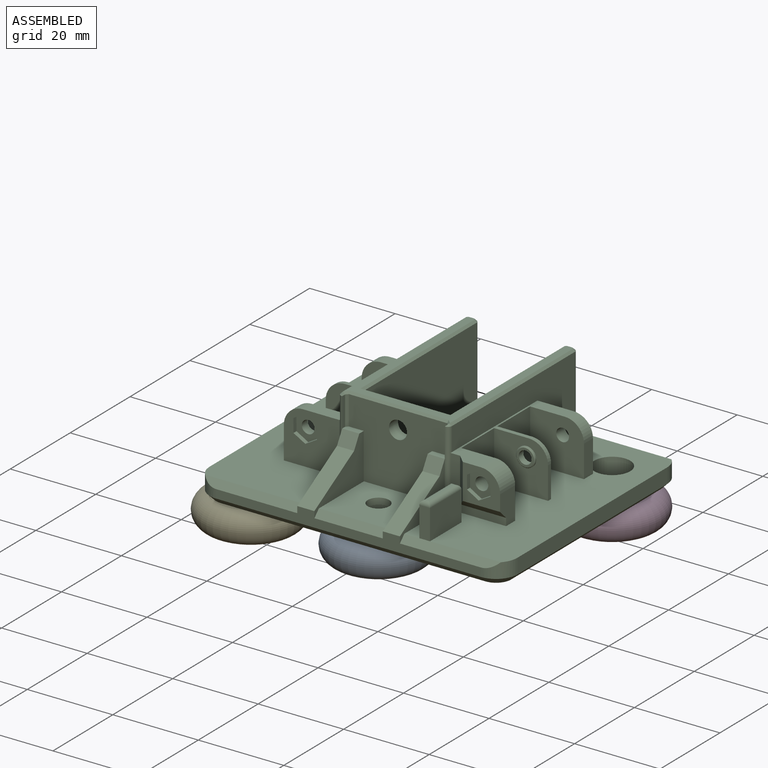
[diagram: assembled view]
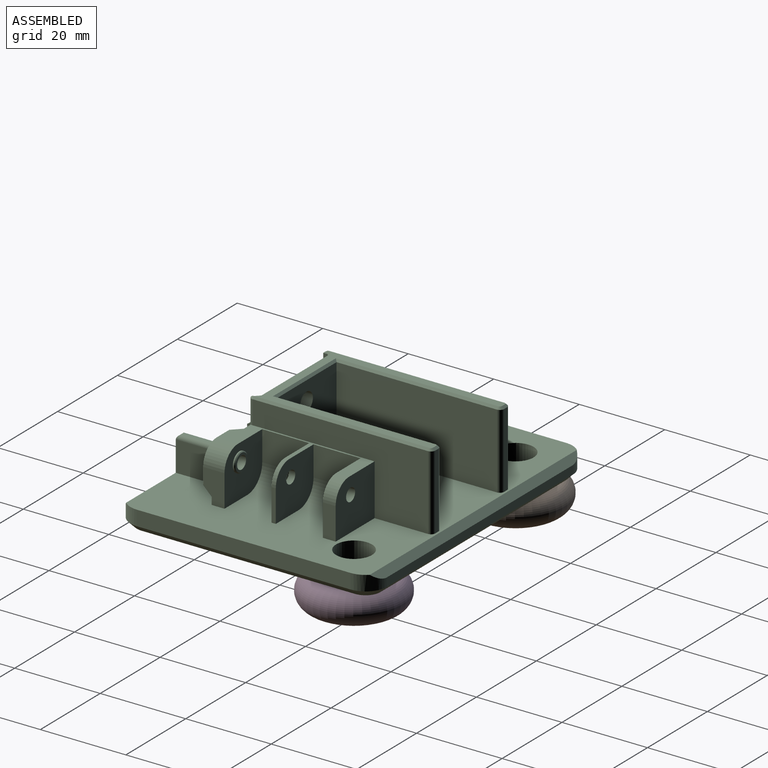
[diagram: assembled view, second angle]
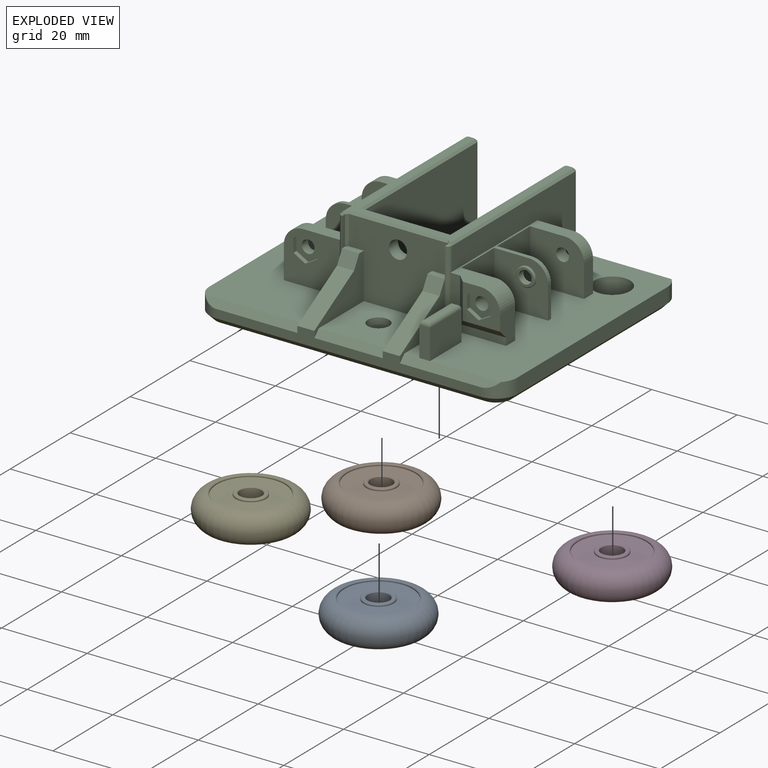
[diagram: exploded view]
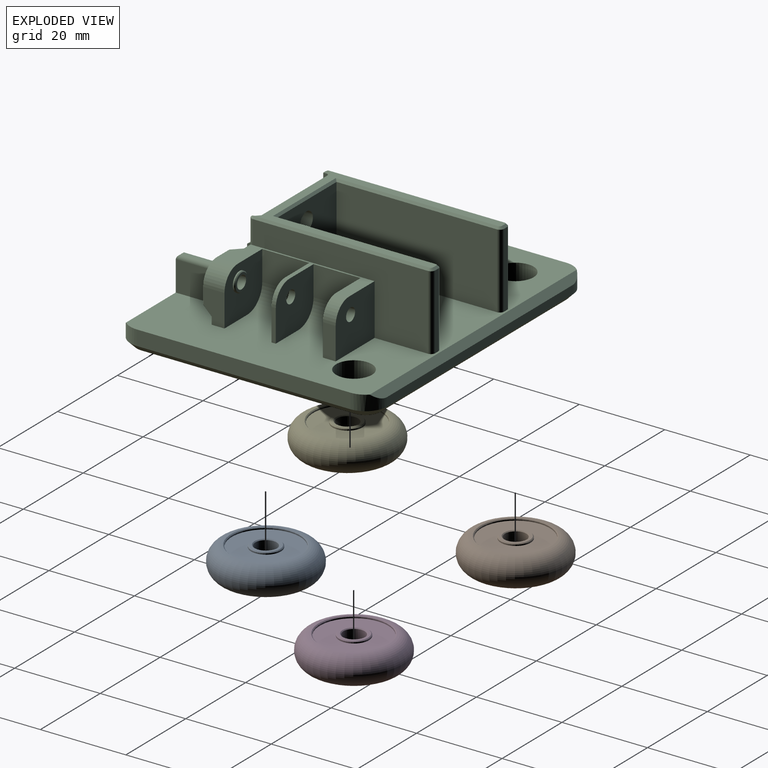
[diagram: exploded view, second angle]
ASSEMBLY  parts=5 mates=3
PART A: 16 faces, bbox 24.9x24.9x7 mm
  f0: plane 6.6x6.6mm, normal (0,0,-1), area 11.3mm2, adj f11,f12
  f1: cylinder r=2.5mm len=6.6mm, axis (0,0,-1), area 103.7mm2, adj f10,f11
  f2: plane 6.6x6.6mm, normal (0,0,1), area 11.3mm2, adj f10,f15
  f3: cylinder r=3.5mm len=7mm, axis (0,0,-1), area 6.6mm2, adj f5,f15
  f4: cylinder r=8mm len=16mm, axis (0,0,-1), area 14.8mm2, adj f5,f14
  f5: plane 16x16mm, normal (0,0,1), area 162.6mm2, adj f3,f4
  f6: cylinder r=3.5mm len=7mm, axis (0,0,-1), area 6.6mm2, adj f8,f12
  f7: cylinder r=8mm len=16mm, axis (0,0,-1), area 14.8mm2, adj f8,f13
  f8: plane 16x16mm, normal (0,0,-1), area 162.6mm2, adj f6,f7
  f9: torus R=8mm, axis (0,0,1), area 685mm2, adj f13,f14
  f10: cone r=2.5mm half-angle=45deg, axis (0,0,1), area 4.6mm2, adj f1,f2
  f11: cone r=2.7mm half-angle=45deg, axis (0,0,-1), area 4.6mm2, adj f0,f1
  f12: cone r=3.5mm half-angle=45deg, axis (0,0,1), area 6mm2, adj f0,f6
  f13: cone r=8mm half-angle=46.7deg, axis (0,0,-1), area 14.8mm2, adj f7,f9
  f14: cone r=8.21mm half-angle=46.7deg, axis (0,0,1), area 14.8mm2, adj f4,f9
  f15: cone r=3.5mm half-angle=45deg, axis (0,0,-1), area 6mm2, adj f2,f3
PART B: same geometry as A
PART C: 162 faces, bbox 72x60x23 mm
  f0: plane 13x12mm, normal (0,-1,0), area 45.8mm2, adj f8,f83,f93,f94,f158,f159
  f1: cylinder r=1.5mm len=3mm, axis (0,1,0), area 14.1mm2, adj f88,f105
  f2: cylinder r=1.5mm len=3mm, axis (0,1,0), area 28.3mm2, adj f84,f86
  f3: cylinder r=1.5mm len=3mm, axis (0,1,0), area 18.8mm2, adj f63,f76
  f4: cylinder r=1.5mm len=3mm, axis (0,1,0), area 14.1mm2, adj f61,f80
  f5: cylinder r=4.2mm len=8.4mm, axis (0,0,1), area 92.4mm2, adj f24,f151
  f6: plane 8.5x0.5mm, normal (0,0,1), area 4.2mm2, adj f146,f147,f148,f149
  f7: plane 41.5x25mm, normal (0,0,1), area 204.8mm2, adj f123,f125,f127,f130,f132,f133,f134,f135
  f8: plane 72x57mm, normal (0,0,1), area 2870.4mm2, adj f0,f9,f10,f11,f12,f14,f16,f17
  f9: plane 37.5x17.5mm, normal (-1,0,0), area 656.3mm2, adj f8,f29,f116,f141
  f10: plane 37.5x17.5mm, normal (1,0,0), area 656.3mm2, adj f8,f30,f116,f138
  f11: plane 41x17.5mm, normal (1,0,0), area 375.5mm2, adj f8,f26,f27,f84,f94,f133
  f12: plane 41x17.5mm, normal (-1,0,0), area 375.5mm2, adj f8,f25,f32,f55,f65,f130
  f13: plane 16x15mm, normal (0,0,1), area 220.4mm2, adj f34,f36,f49,f121,f150
  f14: cylinder r=5mm len=5mm, axis (0,0,1), area 23.6mm2, adj f8,f15,f23,f42,f52
  f15: plane 62x3.5mm, normal (0,-1,0), area 136mm2, adj f14,f16,f33,f34,f35,f36,f37,f38
  f16: cylinder r=5mm len=5mm, axis (0,0,1), area 23.6mm2, adj f8,f15,f17,f43,f50
  f17: plane 50x3.5mm, normal (1,0,0), area 175mm2, adj f8,f16,f18,f45
  f18: cylinder r=5mm len=5mm, axis (0,0,1), area 23.6mm2, adj f8,f17,f19,f47,f51
  f19: plane 62x2mm, normal (0,1,0), area 124mm2, adj f18,f20,f48,f51
  f20: cylinder r=5mm len=5mm, axis (0,0,1), area 23.6mm2, adj f8,f19,f23,f46,f51
  f21: cylinder r=4.2mm len=8.4mm, axis (0,0,1), area 131.9mm2, adj f8,f24
  f22: cylinder r=4.2mm len=8.4mm, axis (0,0,1), area 131.9mm2, adj f8,f24
  f23: plane 50x3.5mm, normal (-1,0,0), area 175mm2, adj f8,f14,f20,f44
  f24: plane 69x57mm, normal (0,0,-1), area 3756.2mm2, adj f5,f21,f22,f41,f42,f43,f44,f45
  f25: cylinder r=1mm len=17.5mm, axis (0,0,-1), area 27.5mm2, adj f8,f12,f33,f54,f119,f128
  f26: cylinder r=1mm len=17.5mm, axis (0,0,-1), area 27.5mm2, adj f8,f11,f37,f83,f118,f131
  f27: cylinder r=1mm len=17.5mm, axis (0,0,-1), area 27.5mm2, adj f8,f11,f28,f135
  f28: plane 17.5x1mm, normal (0,1,0), area 17.5mm2, adj f8,f27,f29,f137
  f29: cylinder r=1mm len=17.5mm, axis (0,0,-1), area 27.5mm2, adj f8,f9,f28,f139
  f30: cylinder r=1mm len=17.5mm, axis (0,0,-1), area 27.5mm2, adj f8,f10,f31,f136
  f31: plane 17.5x1mm, normal (0,1,0), area 17.5mm2, adj f8,f30,f32,f134
  f32: cylinder r=1mm len=17.5mm, axis (0,0,-1), area 27.5mm2, adj f8,f12,f31,f132
  f33: plane 15x12.16mm, normal (-1,0,0), area 67.8mm2, adj f8,f15,f25,f35,f40,f52
  f34: plane 16.5x12.16mm, normal (1,0,0), area 83.8mm2, adj f13,f15,f35,f40,f49,f120,f121
  f35: plane 13.27x7.66mm, normal (0,-0.5,0.87), area 61.3mm2, adj f15,f33,f34,f40
  f36: plane 16.5x12.16mm, normal (-1,0,0), area 83.8mm2, adj f13,f15,f38,f39,f49,f117,f121
  f37: plane 15x12.16mm, normal (1,0,0), area 67.8mm2, adj f8,f15,f26,f38,f39,f50
  f38: plane 13.27x7.66mm, normal (0,-0.5,0.87), area 61.3mm2, adj f15,f36,f37,f39
  f39: plane 4x3mm, normal (0,-0.87,0.5), area 13.9mm2, adj f36,f37,f38,f117
  f40: plane 4x3mm, normal (0,-0.87,0.5), area 13.9mm2, adj f33,f34,f35,f120
  f41: plane 62x1.5mm, normal (0,-0.71,-0.71), area 131.5mm2, adj f15,f24,f42,f43
  f42: cone r=5mm half-angle=45deg, axis (0,0,1), area 14.2mm2, adj f14,f24,f41,f44
  f43: cone r=3.5mm half-angle=45deg, axis (0,0,1), area 14.2mm2, adj f16,f24,f41,f45
  f44: plane 50x1.5mm, normal (-0.71,0,-0.71), area 106.1mm2, adj f23,f24,f42,f46
  f45: plane 50x1.5mm, normal (0.71,0,-0.71), area 106.1mm2, adj f17,f24,f43,f47
  f46: cone r=5mm half-angle=45deg, axis (0,0,1), area 14.2mm2, adj f20,f24,f44,f48
  f47: cone r=3.5mm half-angle=45deg, axis (0,0,1), area 14.2mm2, adj f18,f24,f45,f48
  f48: plane 62x1.5mm, normal (0,0.71,-0.71), area 131.5mm2, adj f19,f24,f46,f47
  f49: plane 16x1.5mm, normal (0,-0.71,0.71), area 33.9mm2, adj f13,f15,f34,f36
  f50: plane 22.57x1.5mm, normal (0,-0.71,0.71), area 45.5mm2, adj f8,f15,f16,f37,f145
  f51: plane 69.14x1.5mm, normal (0,0.71,0.71), area 142mm2, adj f8,f18,f19,f20
  f52: plane 22.57x1.5mm, normal (0,-0.71,0.71), area 45.5mm2, adj f8,f14,f15,f33
  f53: plane 13x12mm, normal (0,-1,0), area 125.5mm2, adj f8,f54,f64,f65,f68,f70,f71,f72
  f54: plane 12x0.5mm, normal (1,0,0), area 6mm2, adj f8,f25,f53,f65
  f55: plane 13x12mm, normal (0,1,0), area 45.8mm2, adj f8,f12,f56,f65,f160,f161
  f56: plane 7.5x3mm, normal (-1,0,0), area 22.5mm2, adj f8,f55,f57,f67,f155
  f57: plane 12.6x12mm, normal (0,-1,0), area 125.6mm2, adj f8,f56,f58,f65,f67,f77,f114
  f58: plane 11x7mm, normal (-1,0,0), area 77mm2, adj f57,f59,f65,f114
  f59: plane 12.6x12mm, normal (0,1,0), area 125.6mm2, adj f8,f58,f60,f65,f66,f79,f114
  f60: plane 7.5x1mm, normal (-1,0,0), area 7.5mm2, adj f8,f59,f61,f66
  f61: plane 12.6x12mm, normal (0,-1,0), area 134.4mm2, adj f4,f8,f60,f62,f65,f66,f113
  f62: plane 11x7mm, normal (-1,0,0), area 77mm2, adj f61,f63,f65,f113
  f63: plane 12.6x12mm, normal (0,1,0), area 134.4mm2, adj f3,f8,f62,f64,f65,f68,f113
  f64: plane 7.5x3mm, normal (-1,0,0), area 22.5mm2, adj f8,f53,f63,f68
  f65: plane 29x8.5mm, normal (0,0,1), area 68.3mm2, adj f12,f53,f54,f55,f57,f58,f59,f61
  f66: cylinder r=4.5mm len=4.5mm, axis (0,1,0), area 7.1mm2, adj f59,f60,f61,f65
  f67: cylinder r=4.5mm len=4.5mm, axis (0,1,0), area 21.2mm2, adj f56,f57,f65,f156
  f68: cylinder r=4.5mm len=4.5mm, axis (0,1,0), area 21.2mm2, adj f53,f63,f64,f65
  f69: cylinder r=1.5mm len=5.5mm, axis (0,1,0), area 51.8mm2, adj f78,f152
  f70: plane 3.18x1mm, normal (-1,0,-0.01), area 3.2mm2, adj f53,f71,f75,f76
  f71: plane 2.76x1.57mm, normal (-0.49,0,-0.87), area 3.2mm2, adj f53,f70,f72,f76
  f72: plane 2.74x1.61mm, normal (0.51,0,-0.86), area 3.2mm2, adj f53,f71,f73,f76
  f73: plane 3.18x1mm, normal (1,0,0.01), area 3.2mm2, adj f53,f72,f74,f76
  f74: plane 2.76x1.57mm, normal (0.49,0,0.87), area 3.2mm2, adj f53,f73,f75,f76
  f75: plane 2.74x1.61mm, normal (-0.51,0,0.86), area 3.2mm2, adj f53,f70,f74,f76
  f76: plane 6.35x5.53mm, normal (0,-1,0), area 19.1mm2, adj f3,f70,f71,f72,f73,f74,f75
  f77: cylinder r=2.25mm len=4.5mm, axis (0,1,0), area 4.2mm2, adj f57,f82
  f78: plane 4.1x4.1mm, normal (0,-1,0), area 6.1mm2, adj f69,f82
  f79: cylinder r=2.25mm len=4.5mm, axis (0,1,0), area 4.2mm2, adj f59,f81
  f80: plane 4.1x4.1mm, normal (0,1,0), area 6.1mm2, adj f4,f81
  f81: cone r=2.05mm half-angle=45deg, axis (0,-1,0), area 3.8mm2, adj f79,f80
  f82: cone r=2.05mm half-angle=45deg, axis (0,1,0), area 3.8mm2, adj f77,f78
  f83: plane 12x0.5mm, normal (-1,0,0), area 6mm2, adj f0,f8,f26,f94
  f84: plane 13x12mm, normal (0,1,0), area 144.6mm2, adj f2,f8,f11,f85,f94,f96
  f85: plane 7.5x3mm, normal (1,0,0), area 22.5mm2, adj f8,f84,f86,f96
  f86: plane 12.6x12mm, normal (0,-1,0), area 134.4mm2, adj f2,f8,f85,f87,f94,f96,f112
  f87: plane 11x7mm, normal (1,0,0), area 77mm2, adj f86,f88,f94,f112
  f88: plane 12.6x12mm, normal (0,1,0), area 134.4mm2, adj f1,f8,f87,f89,f94,f95,f112
  f89: plane 7.5x1mm, normal (1,0,0), area 7.5mm2, adj f8,f88,f90,f95
  f90: plane 12.6x12mm, normal (0,-1,0), area 125.6mm2, adj f8,f89,f91,f94,f95,f106,f111
  f91: plane 11x7mm, normal (1,0,0), area 77mm2, adj f90,f92,f94,f111
  f92: plane 12.6x12mm, normal (0,1,0), area 125.6mm2, adj f8,f91,f93,f94,f97,f107,f111
  f93: plane 7.5x5mm, normal (1,0,0), area 32mm2, adj f0,f8,f92,f97,f153,f159
  f94: plane 31x8.5mm, normal (0,0,1), area 78.8mm2, adj f0,f11,f83,f84,f86,f87,f88,f90
  f95: cylinder r=4.5mm len=4.5mm, axis (0,1,0), area 7.1mm2, adj f88,f89,f90,f94
  f96: cylinder r=4.5mm len=4.5mm, axis (0,1,0), area 21.2mm2, adj f84,f85,f86,f94
  f97: cylinder r=4.5mm len=5mm, axis (0,1,0), area 35.3mm2, adj f92,f93,f94,f153
  f98: cylinder r=1.5mm len=4.5mm, axis (0,1,0), area 42.4mm2, adj f108,f154
  f99: plane 3.18x1mm, normal (1,0,-0.01), area 3.2mm2, adj f100,f104,f153,f154
  f100: plane 2.76x1.57mm, normal (0.49,0,-0.87), area 3.2mm2, adj f99,f101,f153,f154
  f101: plane 2.74x1.61mm, normal (-0.51,0,-0.86), area 3.2mm2, adj f100,f102,f153,f154
  f102: plane 3.18x1mm, normal (-1,0,0.01), area 3.2mm2, adj f101,f103,f153,f154
  f103: plane 2.76x1.57mm, normal (-0.49,0,0.87), area 3.2mm2, adj f102,f104,f153,f154
  f104: plane 2.74x1.61mm, normal (0.51,0,0.86), area 3.2mm2, adj f99,f103,f153,f154
  f105: plane 4.1x4.1mm, normal (0,-1,0), area 6.1mm2, adj f1,f110
  f106: cylinder r=2.25mm len=4.5mm, axis (0,1,0), area 4.2mm2, adj f90,f110
  f107: cylinder r=2.25mm len=4.5mm, axis (0,1,0), area 4.2mm2, adj f92,f109
  f108: plane 4.1x4.1mm, normal (0,1,0), area 6.1mm2, adj f98,f109
  f109: cone r=2.05mm half-angle=45deg, axis (0,-1,0), area 3.8mm2, adj f107,f108
  f110: cone r=2.05mm half-angle=45deg, axis (0,1,0), area 3.8mm2, adj f105,f106
  f111: cylinder r=5mm len=11mm, axis (0,-1,0), area 86.4mm2, adj f8,f90,f91,f92
  f112: cylinder r=5mm len=11mm, axis (0,-1,0), area 86.4mm2, adj f8,f86,f87,f88
  f113: cylinder r=5mm len=11mm, axis (0,-1,0), area 86.4mm2, adj f8,f61,f62,f63
  f114: cylinder r=5mm len=11mm, axis (0,-1,0), area 86.4mm2, adj f8,f57,f58,f59
  f115: cylinder r=2.1mm len=4.2mm, axis (0,1,0), area 39.6mm2, adj f116,f121
  f116: plane 20x17.5mm, normal (0,1,0), area 336.1mm2, adj f8,f9,f10,f115,f140
  f117: plane 4x1.5mm, normal (0,0,1), area 5.9mm2, adj f36,f39,f118,f121,f124
  f118: plane 6.84x1mm, normal (-1,0,0), area 6.8mm2, adj f26,f117,f124,f129
  f119: plane 6.84x1mm, normal (1,0,0), area 6.8mm2, adj f25,f120,f122,f126
  f120: plane 4x1.5mm, normal (0,0,1), area 5.9mm2, adj f34,f40,f119,f121,f122
  f121: plane 23x17.5mm, normal (0,-1,0), area 314mm2, adj f13,f34,f36,f115,f117,f120,f122,f124
  f122: plane 6.84x0.5mm, normal (0.71,-0.71,0), area 4.8mm2, adj f119,f120,f121,f123
  f123: plane 1x1mm, normal (0.58,-0.58,0.58), area 0.6mm2, adj f7,f122,f125,f126
  f124: plane 6.84x0.5mm, normal (-0.71,-0.71,0), area 4.8mm2, adj f117,f118,f121,f127
  f125: plane 23x0.5mm, normal (0,-0.71,0.71), area 16.3mm2, adj f7,f121,f123,f127
  f126: plane 1x0.5mm, normal (0.71,0,0.71), area 0.5mm2, adj f119,f123,f128
  f127: plane 1x1mm, normal (-0.58,-0.58,0.58), area 0.6mm2, adj f7,f124,f125,f129
  f128: cone r=0.5mm half-angle=45deg, axis (0,0,-1), area 0.6mm2, adj f25,f126,f130
  f129: plane 1x0.5mm, normal (-0.71,0,0.71), area 0.5mm2, adj f118,f127,f131
  f130: plane 41x0.5mm, normal (-0.71,0,0.71), area 29mm2, adj f7,f12,f128,f132
  f131: cone r=0.5mm half-angle=45deg, axis (0,0,-1), area 0.6mm2, adj f26,f129,f133
  f132: cone r=0.5mm half-angle=45deg, axis (0,0,-1), area 0.8mm2, adj f7,f32,f130,f134
  f133: plane 41x0.5mm, normal (0.71,0,0.71), area 29mm2, adj f7,f11,f131,f135
  f134: plane 1x0.5mm, normal (0,0.71,0.71), area 0.7mm2, adj f7,f31,f132,f136
  f135: cone r=0.5mm half-angle=45deg, axis (0,0,-1), area 0.8mm2, adj f7,f27,f133,f137
  f136: cone r=0.5mm half-angle=45deg, axis (0,0,-1), area 0.8mm2, adj f7,f30,f134,f138
  f137: plane 1x0.5mm, normal (0,0.71,0.71), area 0.7mm2, adj f7,f28,f135,f139
  f138: plane 38x0.5mm, normal (0.71,0,0.71), area 26.7mm2, adj f7,f10,f136,f140
  f139: cone r=0.5mm half-angle=45deg, axis (0,0,-1), area 0.8mm2, adj f7,f29,f137,f141
  f140: plane 21x0.5mm, normal (0,0.71,0.71), area 14.5mm2, adj f7,f116,f138,f141
  f141: plane 38x0.5mm, normal (-0.71,0,0.71), area 26.7mm2, adj f7,f9,f139,f140
  f142: plane 7x2.5mm, normal (0,1,0), area 17.5mm2, adj f8,f143,f144,f146
  f143: plane 10.5x7mm, normal (-1,0,0), area 73.5mm2, adj f8,f142,f145,f147
  f144: plane 10.5x7mm, normal (1,0,0), area 73.5mm2, adj f8,f142,f145,f148
  f145: plane 7x2.5mm, normal (0,-1,0), area 17.5mm2, adj f50,f143,f144,f149
  f146: cylinder r=1mm len=2.5mm, axis (1,0,0), area 2.8mm2, adj f6,f142,f147,f148
  f147: cylinder r=1mm len=10.5mm, axis (0,1,0), area 15.4mm2, adj f6,f143,f146,f149
  f148: cylinder r=1mm len=10.5mm, axis (0,-1,0), area 15.4mm2, adj f6,f144,f146,f149
  f149: cylinder r=1mm len=2.5mm, axis (-1,0,0), area 2.8mm2, adj f6,f145,f147,f148
  f150: cylinder r=2.5mm len=5mm, axis (0,0,1), area 23.6mm2, adj f13,f151
  f151: plane 8.4x8.4mm, normal (0,0,-1), area 35.8mm2, adj f5,f150
  f152: plane 6.75x6.25mm, normal (0,1,0), area 33.8mm2, adj f69,f155,f156,f157,f160,f161
  f153: plane 8.75x8.25mm, normal (0,-1,0), area 41.6mm2, adj f93,f94,f97,f99,f100,f101,f102,f103
  f154: plane 6.35x5.53mm, normal (0,-1,0), area 19.1mm2, adj f98,f99,f100,f101,f102,f103,f104
  f155: plane 5.75x2mm, normal (-0.71,0.71,0), area 13.4mm2, adj f56,f152,f156,f160
  f156: cone r=2.5mm half-angle=45deg, axis (0,-1,0), area 15.6mm2, adj f67,f152,f155,f157
  f157: plane 6.25x2mm, normal (0,0.71,0.71), area 14.8mm2, adj f65,f152,f156,f161
  f158: plane 10.25x2mm, normal (-0.71,-0.71,0), area 26.2mm2, adj f0,f94,f153,f159
  f159: plane 10.75x2mm, normal (0,-0.71,-0.71), area 27.6mm2, adj f0,f93,f153,f158
  f160: plane 10.75x2mm, normal (0,0.71,-0.71), area 24.7mm2, adj f55,f152,f155,f161
  f161: plane 10.25x2mm, normal (0.71,0.71,0), area 23.3mm2, adj f55,f152,f157,f160
PART D: same geometry as A
PART E: same geometry as A
PLACE A t=(6.86,-51.82,-13.44)mm
PLACE B t=(-20.14,-12.32,-13.44)mm
PLACE C t=(1.21,49.87,-1.44)mm
PLACE D t=(33.86,-12.32,-13.44)mm
PLACE E t=(-22.14,-53.07,-13.43)mm
MATE fastened D.f1 <-> C.f22  axis (0,0,1) through (-31.38,-2.6,-6.44)mm
MATE fastened B.f1 <-> C.f21  axis (0,0,1) through (-85.38,-2.6,-6.44)mm
MATE fastened A.f1 <-> C.f5  axis (0,0,1) through (-58.38,-42.1,-6.44)mm
